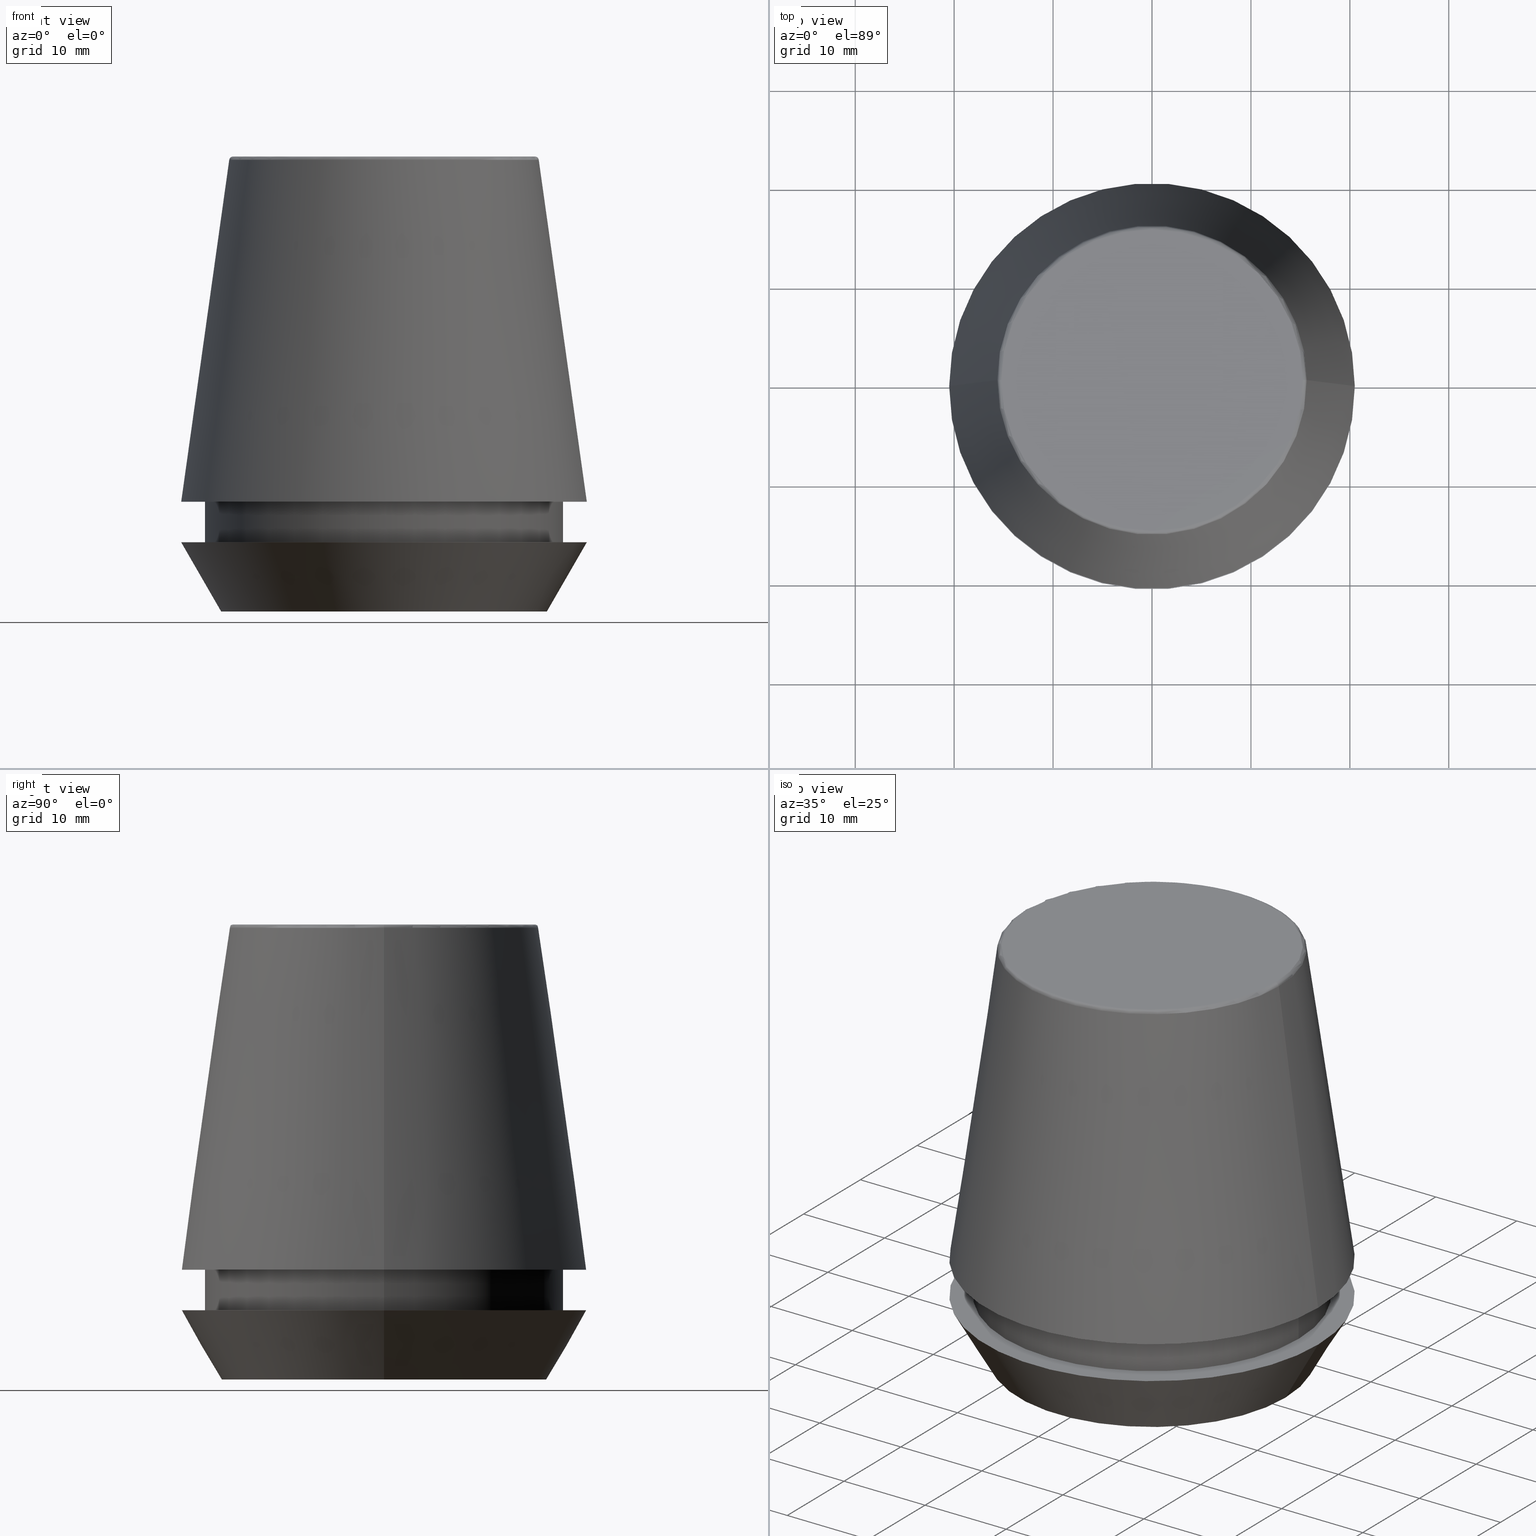
[diagram: canonical four-view strip — front | top / right | iso, engineering-drawing reading convention]
A machine part, canonical four-view strip (front | top / right | iso — engineering-drawing reading convention). The complete STEP part file that produces these views, byte-faithful:
ISO-10303-21;
HEADER;
FILE_DESCRIPTION (( 'STEP AP203' ),
    '1' );
FILE_NAME ('TAP COLLET ER 40G 12.5 X 10.0.STEP',
    '2019-04-10T04:03:06',
    ( '' ),
    ( '' ),
    'SwSTEP 2.0',
    'SolidWorks 2014',
    '' );
FILE_SCHEMA (( 'CONFIG_CONTROL_DESIGN' ));
ENDSEC;

DATA;
#1 = FACE_OUTER_BOUND ( 'NONE', #226, .T. ) ;
#2 = ADVANCED_FACE ( 'NONE', ( #323 ), #117, .T. ) ;
#3 = APPROVAL_DATE_TIME ( #240, #199 ) ;
#4 = EDGE_CURVE ( 'NONE', #152, #173, #128, .T. ) ;
#5 = DIRECTION ( 'NONE',  ( -0.0000000000000000000, -0.0000000000000000000, 1.000000000000000000 ) ) ;
#6 = CARTESIAN_POINT ( 'NONE',  ( 0.0000000000000000000, 0.0000000000000000000, 0.0000000000000000000 ) ) ;
#7 =( NAMED_UNIT ( * ) PLANE_ANGLE_UNIT ( ) SI_UNIT ( $, .RADIAN. ) );
#8 = AXIS2_PLACEMENT_3D ( 'NONE', #354, #185, #386 ) ;
#9 = VERTEX_POINT ( 'NONE', #54 ) ;
#10 = AXIS2_PLACEMENT_3D ( 'NONE', #347, #335, #136 ) ;
#11 = DIRECTION ( 'NONE',  ( 1.000000000000000000, 0.0000000000000000000, 0.0000000000000000000 ) ) ;
#12 = CIRCLE ( 'NONE', #361, 20.50032537154048700 ) ;
#13 = APPLICATION_CONTEXT ( 'configuration controlled 3d designs of mechanical parts and assemblies' ) ;
#14 = EDGE_CURVE ( 'NONE', #270, #253, #21, .T. ) ;
#15 = DIRECTION ( 'NONE',  ( 0.0000000000000000000, -0.0000000000000000000, 1.000000000000000000 ) ) ;
#16 = PERSON_AND_ORGANIZATION ( #278, #271 ) ;
#17 = UNCERTAINTY_MEASURE_WITH_UNIT (LENGTH_MEASURE( 1.000000000000000100E-005 ), #157, 'distance_accuracy_value', 'NONE');
#18 = DIRECTION ( 'NONE',  ( 1.000000000000000000, 0.0000000000000000000, 0.0000000000000000000 ) ) ;
#19 = DIRECTION ( 'NONE',  ( -0.0000000000000000000, -0.0000000000000000000, 1.000000000000000000 ) ) ;
#20 = CARTESIAN_POINT ( 'NONE',  ( 20.50000000000000000, 0.0000000000000000000, 7.000000000000006200 ) ) ;
#21 = CIRCLE ( 'NONE', #126, 18.10000000000000100 ) ;
#22 = DIRECTION ( 'NONE',  ( -1.000000000000000000, 0.0000000000000000000, 0.0000000000000000000 ) ) ;
#23 = CARTESIAN_POINT ( 'NONE',  ( 0.0000000000000000000, 0.0000000000000000000, 45.65566924038402900 ) ) ;
#24 = EDGE_CURVE ( 'NONE', #293, #193, #84, .T. ) ;
#25 = APPROVAL_ROLE ( '' ) ;
#26 = VERTEX_POINT ( 'NONE', #110 ) ;
#27 = AXIS2_PLACEMENT_3D ( 'NONE', #384, #36, #303 ) ;
#28 = SECURITY_CLASSIFICATION ( '', '', #141 ) ;
#29 = EDGE_CURVE ( 'NONE', #213, #173, #31, .T. ) ;
#30 = AXIS2_PLACEMENT_3D ( 'NONE', #74, #288, #97 ) ;
#31 = CIRCLE ( 'NONE', #59, 15.24773554530077600 ) ;
#32 = EDGE_CURVE ( 'NONE', #9, #213, #187, .T. ) ;
#33 = APPROVAL_DATE_TIME ( #178, #52 ) ;
#34 = AXIS2_PLACEMENT_3D ( 'NONE', #94, #310, #119 ) ;
#35 = EDGE_CURVE ( 'NONE', #26, #193, #61, .T. ) ;
#36 = DIRECTION ( 'NONE',  ( 1.224646799147353200E-016, 1.000000000000000000, 0.0000000000000000000 ) ) ;
#37 = PERSON_AND_ORGANIZATION ( #278, #271 ) ;
#38 = DIRECTION ( 'NONE',  ( 1.000000000000000000, 0.0000000000000000000, 0.0000000000000000000 ) ) ;
#39 = AXIS2_PLACEMENT_3D ( 'NONE', #377, #170, #18 ) ;
#40 = CARTESIAN_POINT ( 'NONE',  ( 16.45854811567268100, 0.0000000000000000000, 0.0000000000000000000 ) ) ;
#41 = EDGE_CURVE ( 'NONE', #152, #9, #264, .T. ) ;
#42 = DIRECTION ( 'NONE',  ( -0.0000000000000000000, -0.0000000000000000000, 1.000000000000000000 ) ) ;
#43 = CARTESIAN_POINT ( 'NONE',  ( -15.64384277279740400, 0.0000000000000000000, 45.65566924038402900 ) ) ;
#44 = APPROVAL_STATUS ( 'not_yet_approved' ) ;
#45 = CARTESIAN_POINT ( 'NONE',  ( 0.0000000000000000000, 0.0000000000000000000, 46.00000000000000000 ) ) ;
#46 = PERSON_AND_ORGANIZATION ( #278, #271 ) ;
#47 = ADVANCED_FACE ( 'NONE', ( #60 ), #348, .T. ) ;
#48 = AXIS2_PLACEMENT_3D ( 'NONE', #235, #42, #233 ) ;
#49 = CC_DESIGN_APPROVAL ( #52, ( #28 ) ) ;
#50 = PLANE ( 'NONE',  #350 ) ;
#51 = DATE_AND_TIME ( #81, #272 ) ;
#52 = APPROVAL ( #183, 'UNSPECIFIED' ) ;
#53 = CYLINDRICAL_SURFACE ( 'NONE', #382, 18.10000000000000500 ) ;
#54 = CARTESIAN_POINT ( 'NONE',  ( 15.64384277279740400, 2.213191991290356800E-015, 45.65566924038402900 ) ) ;
#55 = ADVANCED_FACE ( 'NONE', ( #362 ), #50, .F. ) ;
#56 = DIRECTION ( 'NONE',  ( 1.000000000000000000, 0.0000000000000000000, 0.0000000000000000000 ) ) ;
#57 = CARTESIAN_POINT ( 'NONE',  ( 0.0000000000000000000, 0.0000000000000000000, 11.09999999999999800 ) ) ;
#58 = PERSON_AND_ORGANIZATION ( #278, #271 ) ;
#59 = AXIS2_PLACEMENT_3D ( 'NONE', #304, #111, #338 ) ;
#60 = FACE_OUTER_BOUND ( 'NONE', #237, .T. ) ;
#61 = LINE ( 'NONE', #372, #280 ) ;
#62 = DIRECTION ( 'NONE',  ( -1.000000000000000000, 0.0000000000000000000, -0.0000000000000000000 ) ) ;
#63 = DIRECTION ( 'NONE',  ( -0.4999999999999941700, 6.123233995736694500E-017, 0.8660254037844420400 ) ) ;
#64 = TOROIDAL_SURFACE ( 'NONE', #30, 15.24773554530077600, 0.3999999999999991900 ) ;
#65 = DIRECTION ( 'NONE',  ( -0.0000000000000000000, -0.0000000000000000000, 1.000000000000000000 ) ) ;
#66 = PERSON_AND_ORGANIZATION_ROLE ( 'creator' ) ;
#67 = CARTESIAN_POINT ( 'NONE',  ( 20.50032537154048700, 2.510565784773633700E-015, 11.09999999999999800 ) ) ;
#68 = EDGE_LOOP ( 'NONE', ( #299, #282 ) ) ;
#69 = CALENDAR_DATE ( 2019, 10, 4 ) ;
#70 = DIRECTION ( 'NONE',  ( -0.0000000000000000000, -0.0000000000000000000, 1.000000000000000000 ) ) ;
#71 = PLANE ( 'NONE',  #254 ) ;
#72 = CONICAL_SURFACE ( 'NONE', #276, 16.45854811567268100, 0.5235987755982921500 ) ;
#73 = DIRECTION ( 'NONE',  ( -0.0000000000000000000, -0.0000000000000000000, 1.000000000000000000 ) ) ;
#74 = CARTESIAN_POINT ( 'NONE',  ( 0.0000000000000000000, 0.0000000000000000000, 45.60000000000000100 ) ) ;
#75 = CARTESIAN_POINT ( 'NONE',  ( 15.24773554530077600, 0.0000000000000000000, 45.60000000000000100 ) ) ;
#76 = ORIENTED_EDGE ( 'NONE', *, *, #29, .T. ) ;
#77 = CALENDAR_DATE ( 2019, 10, 4 ) ;
#78 = AXIS2_PLACEMENT_3D ( 'NONE', #369, #160, #198 ) ;
#79 = CIRCLE ( 'NONE', #39, 15.64384277279740400 ) ;
#80 = DATE_AND_TIME ( #77, #294 ) ;
#81 = CALENDAR_DATE ( 2019, 10, 4 ) ;
#82 = PRODUCT_RELATED_PRODUCT_CATEGORY ( 'detail', '', ( #239 ) ) ;
#83 = FACE_OUTER_BOUND ( 'NONE', #197, .T. ) ;
#84 = CIRCLE ( 'NONE', #48, 20.50000000000000000 ) ;
#85 = ADVANCED_FACE ( 'NONE', ( #326 ), #72, .T. ) ;
#86 = DIRECTION ( 'NONE',  ( 1.000000000000000000, 0.0000000000000000000, 0.0000000000000000000 ) ) ;
#87 = APPLICATION_CONTEXT ( 'configuration controlled 3d designs of mechanical parts and assemblies' ) ;
#88 = ORIENTED_EDGE ( 'NONE', *, *, #4, .T. ) ;
#89 = APPROVAL_STATUS ( 'not_yet_approved' ) ;
#90 = CARTESIAN_POINT ( 'NONE',  ( 20.50032537154048700, 2.510565784773633700E-015, 11.09999999999999800 ) ) ;
#91 = DIRECTION ( 'NONE',  ( -0.1391731009600587200, 0.0000000000000000000, -0.9902680687415712500 ) ) ;
#92 = VECTOR ( 'NONE', #91, 1000.000000000000000 ) ;
#93 = DIRECTION ( 'NONE',  ( -0.0000000000000000000, -0.0000000000000000000, 1.000000000000000000 ) ) ;
#94 = CARTESIAN_POINT ( 'NONE',  ( 0.0000000000000000000, 0.0000000000000000000, 0.0000000000000000000 ) ) ;
#95 = EDGE_CURVE ( 'NONE', #9, #152, #79, .T. ) ;
#96 = DIRECTION ( 'NONE',  ( 0.0000000000000000000, 0.0000000000000000000, -1.000000000000000000 ) ) ;
#97 = DIRECTION ( 'NONE',  ( 1.000000000000000000, 0.0000000000000000000, 0.0000000000000000000 ) ) ;
#98 = DIRECTION ( 'NONE',  ( 0.0000000000000000000, 0.0000000000000000000, -1.000000000000000000 ) ) ;
#99 = APPROVAL ( #44, 'UNSPECIFIED' ) ;
#100 = LOCAL_TIME ( 9, 33, 6.000000000000000000, #230 ) ;
#101 = CC_DESIGN_APPROVAL ( #99, ( #332 ) ) ;
#102 = LOCAL_TIME ( 9, 33, 6.000000000000000000, #250 ) ;
#103 = AXIS2_PLACEMENT_3D ( 'NONE', #308, #205, #122 ) ;
#104 = ORIENTED_EDGE ( 'NONE', *, *, #176, .F. ) ;
#105 = PLANE ( 'NONE',  #155 ) ;
#106 = ADVANCED_FACE ( 'NONE', ( #234 ), #364, .T. ) ;
#107 = CARTESIAN_POINT ( 'NONE',  ( 0.0000000000000000000, 0.0000000000000000000, 0.0000000000000000000 ) ) ;
#108 = CALENDAR_DATE ( 2019, 10, 4 ) ;
#109 = DIRECTION ( 'NONE',  ( -0.0000000000000000000, -0.0000000000000000000, 1.000000000000000000 ) ) ;
#110 = CARTESIAN_POINT ( 'NONE',  ( -16.45854811567268100, 2.263058382549599700E-015, 0.0000000000000000000 ) ) ;
#111 = DIRECTION ( 'NONE',  ( -0.0000000000000000000, -0.0000000000000000000, 1.000000000000000000 ) ) ;
#112 = DATE_AND_TIME ( #124, #100 ) ;
#113 = PLANE ( 'NONE',  #383 ) ;
#114 = PERSON_AND_ORGANIZATION_ROLE ( 'creator' ) ;
#115 = CIRCLE ( 'NONE', #164, 16.45854811567268100 ) ;
#116 = CARTESIAN_POINT ( 'NONE',  ( -20.50032537154048700, 0.0000000000000000000, 11.09999999999999800 ) ) ;
#117 = CONICAL_SURFACE ( 'NONE', #8, 20.50032537154048700, 0.1396263401595396200 ) ;
#118 = CC_DESIGN_PERSON_AND_ORGANIZATION_ASSIGNMENT ( #341, #345, ( #181 ) ) ;
#119 = DIRECTION ( 'NONE',  ( 1.000000000000000000, 0.0000000000000000000, 0.0000000000000000000 ) ) ;
#120 = CARTESIAN_POINT ( 'NONE',  ( 0.0000000000000000000, 0.0000000000000000000, 0.0000000000000000000 ) ) ;
#121 = DIRECTION ( 'NONE',  ( 1.000000000000000000, 0.0000000000000000000, 0.0000000000000000000 ) ) ;
#122 = DIRECTION ( 'NONE',  ( 1.000000000000000000, 0.0000000000000000000, 0.0000000000000000000 ) ) ;
#123 = APPROVAL_PERSON_ORGANIZATION ( #37, #199, #307 ) ;
#124 = CALENDAR_DATE ( 2019, 10, 4 ) ;
#125 = VERTEX_POINT ( 'NONE', #143 ) ;
#126 = AXIS2_PLACEMENT_3D ( 'NONE', #371, #163, #11 ) ;
#127 = SHAPE_DEFINITION_REPRESENTATION ( #367, #375 ) ;
#128 = CIRCLE ( 'NONE', #27, 0.3999999999999975800 ) ;
#129 = EDGE_CURVE ( 'NONE', #9, #215, #340, .T. ) ;
#130 = CC_DESIGN_DATE_AND_TIME_ASSIGNMENT ( #112, #167, ( #28 ) ) ;
#131 = DIRECTION ( 'NONE',  ( 1.000000000000000000, 0.0000000000000000000, 0.0000000000000000000 ) ) ;
#132 = LOCAL_TIME ( 9, 33, 6.000000000000000000, #186 ) ;
#133 = DIRECTION ( 'NONE',  ( -0.0000000000000000000, -0.0000000000000000000, 1.000000000000000000 ) ) ;
#134 = AXIS2_PLACEMENT_3D ( 'NONE', #23, #138, #179 ) ;
#135 = CARTESIAN_POINT ( 'NONE',  ( 0.0000000000000000000, 0.0000000000000000000, 11.09999999999999800 ) ) ;
#136 = DIRECTION ( 'NONE',  ( 1.000000000000000000, 0.0000000000000000000, 0.0000000000000000000 ) ) ;
#137 = EDGE_CURVE ( 'NONE', #204, #293, #156, .T. ) ;
#138 = DIRECTION ( 'NONE',  ( -0.0000000000000000000, -0.0000000000000000000, 1.000000000000000000 ) ) ;
#139 = CARTESIAN_POINT ( 'NONE',  ( 0.0000000000000000000, 0.0000000000000000000, 7.000000000000006200 ) ) ;
#140 = APPLICATION_PROTOCOL_DEFINITION ( 'international standard', 'config_control_design', 1994, #87 ) ;
#141 = SECURITY_CLASSIFICATION_LEVEL ( 'unclassified' ) ;
#142 = CC_DESIGN_PERSON_AND_ORGANIZATION_ASSIGNMENT ( #46, #114, ( #181 ) ) ;
#143 = CARTESIAN_POINT ( 'NONE',  ( -20.50032537154048700, 0.0000000000000000000, 11.09999999999999800 ) ) ;
#144 = EDGE_LOOP ( 'NONE', ( #297, #171 ) ) ;
#145 = CARTESIAN_POINT ( 'NONE',  ( 0.0000000000000000000, 20.50032537154048700, 11.09999999999999800 ) ) ;
#146 = DIRECTION ( 'NONE',  ( 0.0000000000000000000, 0.0000000000000000000, -1.000000000000000000 ) ) ;
#147 = EDGE_CURVE ( 'NONE', #193, #293, #380, .T. ) ;
#148 = AXIS2_PLACEMENT_3D ( 'NONE', #284, #93, #121 ) ;
#149 = EDGE_CURVE ( 'NONE', #215, #125, #261, .T. ) ;
#150 = ADVANCED_FACE ( 'NONE', ( #356, #358 ), #113, .F. ) ;
#151 = ORIENTED_EDGE ( 'NONE', *, *, #365, .T. ) ;
#152 = VERTEX_POINT ( 'NONE', #43 ) ;
#153 = CIRCLE ( 'NONE', #259, 18.10000000000000500 ) ;
#154 = CARTESIAN_POINT ( 'NONE',  ( 0.0000000000000000000, 0.0000000000000000000, 46.00000000000000000 ) ) ;
#155 = AXIS2_PLACEMENT_3D ( 'NONE', #107, #329, #131 ) ;
#156 = LINE ( 'NONE', #182, #379 ) ;
#157 =( LENGTH_UNIT ( ) NAMED_UNIT ( * ) SI_UNIT ( .MILLI., .METRE. ) );
#158 = FACE_BOUND ( 'NONE', #144, .T. ) ;
#159 = ORIENTED_EDGE ( 'NONE', *, *, #95, .T. ) ;
#160 = DIRECTION ( 'NONE',  ( -0.0000000000000000000, -0.0000000000000000000, 1.000000000000000000 ) ) ;
#161 = AXIS2_PLACEMENT_3D ( 'NONE', #320, #146, #22 ) ;
#162 = AXIS2_PLACEMENT_3D ( 'NONE', #241, #65, #212 ) ;
#163 = DIRECTION ( 'NONE',  ( -0.0000000000000000000, -0.0000000000000000000, 1.000000000000000000 ) ) ;
#164 = AXIS2_PLACEMENT_3D ( 'NONE', #330, #133, #366 ) ;
#165 = DIRECTION ( 'NONE',  ( 1.000000000000000000, 0.0000000000000000000, 0.0000000000000000000 ) ) ;
#166 = PERSON_AND_ORGANIZATION_ROLE ( 'design_owner' ) ;
#167 = DATE_TIME_ROLE ( 'classification_date' ) ;
#168 =( GEOMETRIC_REPRESENTATION_CONTEXT ( 3 ) GLOBAL_UNCERTAINTY_ASSIGNED_CONTEXT ( ( #17 ) ) GLOBAL_UNIT_ASSIGNED_CONTEXT ( ( #157, #7, #196 ) ) REPRESENTATION_CONTEXT ( 'NONE', 'WORKASPACE' ) );
#169 = ORIENTED_EDGE ( 'NONE', *, *, #147, .F. ) ;
#170 = DIRECTION ( 'NONE',  ( -0.0000000000000000000, -0.0000000000000000000, 1.000000000000000000 ) ) ;
#171 = ORIENTED_EDGE ( 'NONE', *, *, #14, .F. ) ;
#172 = CARTESIAN_POINT ( 'NONE',  ( 0.0000000000000000000, 0.0000000000000000000, 11.09999999999999800 ) ) ;
#173 = VERTEX_POINT ( 'NONE', #244 ) ;
#174 = DESIGN_CONTEXT ( 'detailed design', #13, 'design' ) ;
#175 = ORIENTED_EDGE ( 'NONE', *, *, #311, .T. ) ;
#176 = EDGE_CURVE ( 'NONE', #173, #213, #209, .T. ) ;
#177 = CIRCLE ( 'NONE', #232, 18.10000000000000500 ) ;
#178 = DATE_AND_TIME ( #69, #132 ) ;
#179 = DIRECTION ( 'NONE',  ( 1.000000000000000000, 0.0000000000000000000, 0.0000000000000000000 ) ) ;
#180 = CARTESIAN_POINT ( 'NONE',  ( 18.10000000000000100, 0.0000000000000000000, 6.999999999999999100 ) ) ;
#181 = PRODUCT_DEFINITION_FORMATION_WITH_SPECIFIED_SOURCE ( 'ANY', '', #239, .NOT_KNOWN. ) ;
#182 = CARTESIAN_POINT ( 'NONE',  ( 16.45854811567268100, 0.0000000000000000000, 0.0000000000000000000 ) ) ;
#183 = APPROVAL_STATUS ( 'not_yet_approved' ) ;
#184 = ORIENTED_EDGE ( 'NONE', *, *, #311, .F. ) ;
#185 = DIRECTION ( 'NONE',  ( 0.0000000000000000000, 0.0000000000000000000, -1.000000000000000000 ) ) ;
#186 = COORDINATED_UNIVERSAL_TIME_OFFSET ( 5, 30, .AHEAD. ) ;
#187 = CIRCLE ( 'NONE', #344, 0.3999999999999975800 ) ;
#188 = EDGE_CURVE ( 'NONE', #152, #125, #249, .T. ) ;
#189 = ORIENTED_EDGE ( 'NONE', *, *, #385, .F. ) ;
#190 = ORIENTED_EDGE ( 'NONE', *, *, #305, .F. ) ;
#191 = EDGE_LOOP ( 'NONE', ( #189, #312 ) ) ;
#192 = ADVANCED_FACE ( 'NONE', ( #343 ), #238, .T. ) ;
#193 = VERTEX_POINT ( 'NONE', #231 ) ;
#194 = ORIENTED_EDGE ( 'NONE', *, *, #188, .T. ) ;
#195 = ORIENTED_EDGE ( 'NONE', *, *, #137, .T. ) ;
#196 =( NAMED_UNIT ( * ) SI_UNIT ( $, .STERADIAN. ) SOLID_ANGLE_UNIT ( ) );
#197 = EDGE_LOOP ( 'NONE', ( #214, #256, #175, #190 ) ) ;
#198 = DIRECTION ( 'NONE',  ( 1.000000000000000000, 0.0000000000000000000, 0.0000000000000000000 ) ) ;
#199 = APPROVAL ( #89, 'UNSPECIFIED' ) ;
#200 = ORIENTED_EDGE ( 'NONE', *, *, #149, .F. ) ;
#201 = APPLICATION_PROTOCOL_DEFINITION ( 'international standard', 'config_control_design', 1994, #13 ) ;
#202 = ORIENTED_EDGE ( 'NONE', *, *, #149, .T. ) ;
#203 = DIRECTION ( 'NONE',  ( 1.000000000000000000, 0.0000000000000000000, 0.0000000000000000000 ) ) ;
#204 = VERTEX_POINT ( 'NONE', #40 ) ;
#205 = DIRECTION ( 'NONE',  ( -0.0000000000000000000, -0.0000000000000000000, 1.000000000000000000 ) ) ;
#206 = APPROVAL_PERSON_ORGANIZATION ( #327, #99, #243 ) ;
#207 = DIRECTION ( 'NONE',  ( 1.000000000000000000, 0.0000000000000000000, 0.0000000000000000000 ) ) ;
#208 = CARTESIAN_POINT ( 'NONE',  ( 18.10000000000000500, 0.0000000000000000000, 11.09999999999999800 ) ) ;
#209 = CIRCLE ( 'NONE', #10, 15.24773554530077600 ) ;
#210 = ORIENTED_EDGE ( 'NONE', *, *, #29, .F. ) ;
#211 = ORIENTED_EDGE ( 'NONE', *, *, #220, .T. ) ;
#212 = DIRECTION ( 'NONE',  ( 1.000000000000000000, 0.0000000000000000000, 0.0000000000000000000 ) ) ;
#213 = VERTEX_POINT ( 'NONE', #339 ) ;
#214 = ORIENTED_EDGE ( 'NONE', *, *, #355, .F. ) ;
#215 = VERTEX_POINT ( 'NONE', #67 ) ;
#216 = ORIENTED_EDGE ( 'NONE', *, *, #35, .F. ) ;
#217 = ORIENTED_EDGE ( 'NONE', *, *, #355, .T. ) ;
#218 = CC_DESIGN_SECURITY_CLASSIFICATION ( #28, ( #181 ) ) ;
#219 = CIRCLE ( 'NONE', #34, 16.45854811567268100 ) ;
#220 = EDGE_CURVE ( 'NONE', #26, #204, #219, .T. ) ;
#221 = DIRECTION ( 'NONE',  ( -0.0000000000000000000, -0.0000000000000000000, 1.000000000000000000 ) ) ;
#222 = ADVANCED_FACE ( 'NONE', ( #158, #359 ), #71, .F. ) ;
#223 = COORDINATED_UNIVERSAL_TIME_OFFSET ( 5, 30, .AHEAD. ) ;
#224 = DIRECTION ( 'NONE',  ( 0.0000000000000000000, 0.0000000000000000000, 1.000000000000000000 ) ) ;
#225 = EDGE_LOOP ( 'NONE', ( #357, #217, #300, #184 ) ) ;
#226 = EDGE_LOOP ( 'NONE', ( #269, #277, #236, #104 ) ) ;
#227 = CARTESIAN_POINT ( 'NONE',  ( 18.10000000000000500, 0.0000000000000000000, 46.00000000000000000 ) ) ;
#228 = CYLINDRICAL_SURFACE ( 'NONE', #263, 18.10000000000000500 ) ;
#229 = LINE ( 'NONE', #227, #257 ) ;
#230 = COORDINATED_UNIVERSAL_TIME_OFFSET ( 5, 30, .AHEAD. ) ;
#231 = CARTESIAN_POINT ( 'NONE',  ( -20.50000000000000000, 2.510525938252074100E-015, 7.000000000000006200 ) ) ;
#232 = AXIS2_PLACEMENT_3D ( 'NONE', #172, #19, #207 ) ;
#233 = DIRECTION ( 'NONE',  ( 1.000000000000000000, 0.0000000000000000000, 0.0000000000000000000 ) ) ;
#234 = FACE_OUTER_BOUND ( 'NONE', #328, .T. ) ;
#235 = CARTESIAN_POINT ( 'NONE',  ( 0.0000000000000000000, 0.0000000000000000000, 7.000000000000006200 ) ) ;
#236 = ORIENTED_EDGE ( 'NONE', *, *, #32, .T. ) ;
#237 = EDGE_LOOP ( 'NONE', ( #316, #242, #194, #151 ) ) ;
#238 = CONICAL_SURFACE ( 'NONE', #78, 16.45854811567268100, 0.5235987755982921500 ) ;
#239 = PRODUCT ( 'TAP COLLET ER 40G 12.5 X 10.0', 'TAP COLLET ER 40G 12.5 X 10.0', '', ( #374 ) ) ;
#240 = DATE_AND_TIME ( #108, #102 ) ;
#241 = CARTESIAN_POINT ( 'NONE',  ( 0.0000000000000000000, 0.0000000000000000000, 11.09999999999999800 ) ) ;
#242 = ORIENTED_EDGE ( 'NONE', *, *, #41, .F. ) ;
#243 = APPROVAL_ROLE ( '' ) ;
#244 = CARTESIAN_POINT ( 'NONE',  ( -15.24773554530077600, 1.891563625393435400E-015, 46.00000000000000000 ) ) ;
#245 = ORIENTED_EDGE ( 'NONE', *, *, #24, .F. ) ;
#246 = FACE_OUTER_BOUND ( 'NONE', #191, .T. ) ;
#247 = AXIS2_PLACEMENT_3D ( 'NONE', #139, #373, #165 ) ;
#248 = ORIENTED_EDGE ( 'NONE', *, *, #24, .T. ) ;
#249 = LINE ( 'NONE', #116, #92 ) ;
#250 = COORDINATED_UNIVERSAL_TIME_OFFSET ( 5, 30, .AHEAD. ) ;
#251 = DIRECTION ( 'NONE',  ( 1.000000000000000000, 0.0000000000000000000, 0.0000000000000000000 ) ) ;
#252 = AXIS2_PLACEMENT_3D ( 'NONE', #6, #224, #342 ) ;
#253 = VERTEX_POINT ( 'NONE', #180 ) ;
#254 = AXIS2_PLACEMENT_3D ( 'NONE', #285, #349, #62 ) ;
#255 = CC_DESIGN_PERSON_AND_ORGANIZATION_ASSIGNMENT ( #258, #376, ( #28 ) ) ;
#256 = ORIENTED_EDGE ( 'NONE', *, *, #14, .T. ) ;
#257 = VECTOR ( 'NONE', #5, 1000.000000000000000 ) ;
#258 = PERSON_AND_ORGANIZATION ( #278, #271 ) ;
#259 = AXIS2_PLACEMENT_3D ( 'NONE', #135, #368, #378 ) ;
#260 = ORIENTED_EDGE ( 'NONE', *, *, #137, .F. ) ;
#261 = CIRCLE ( 'NONE', #162, 20.50032537154048700 ) ;
#262 = VERTEX_POINT ( 'NONE', #208 ) ;
#263 = AXIS2_PLACEMENT_3D ( 'NONE', #45, #70, #38 ) ;
#264 = CIRCLE ( 'NONE', #134, 15.64384277279740400 ) ;
#265 = ADVANCED_FACE ( 'NONE', ( #1 ), #64, .T. ) ;
#266 = EDGE_LOOP ( 'NONE', ( #331, #281, #202, #351 ) ) ;
#267 = ORIENTED_EDGE ( 'NONE', *, *, #35, .T. ) ;
#268 = DIRECTION ( 'NONE',  ( -0.0000000000000000000, -0.0000000000000000000, 1.000000000000000000 ) ) ;
#269 = ORIENTED_EDGE ( 'NONE', *, *, #4, .F. ) ;
#270 = VERTEX_POINT ( 'NONE', #275 ) ;
#271 = ORGANIZATION ( 'UNSPECIFIED', 'UNSPECIFIED', '' ) ;
#272 = LOCAL_TIME ( 9, 33, 6.000000000000000000, #318 ) ;
#273 = CARTESIAN_POINT ( 'NONE',  ( -18.10000000000000500, 2.216610706456710000E-015, 11.09999999999999800 ) ) ;
#274 = EDGE_CURVE ( 'NONE', #262, #309, #177, .T. ) ;
#275 = CARTESIAN_POINT ( 'NONE',  ( -18.10000000000000100, 2.216610706456709600E-015, 6.999999999999999100 ) ) ;
#276 = AXIS2_PLACEMENT_3D ( 'NONE', #120, #73, #251 ) ;
#277 = ORIENTED_EDGE ( 'NONE', *, *, #41, .T. ) ;
#278 = PERSON ( 'UNSPECIFIED', 'UNSPECIFIED', 'UNSPECIFIED', ('UNSPECIFIED'), ('UNSPECIFIED'), ('UNSPECIFIED') ) ;
#279 = DATE_TIME_ROLE ( 'creation_date' ) ;
#280 = VECTOR ( 'NONE', #63, 1000.000000000000000 ) ;
#281 = ORIENTED_EDGE ( 'NONE', *, *, #129, .T. ) ;
#282 = ORIENTED_EDGE ( 'NONE', *, *, #305, .T. ) ;
#283 = LINE ( 'NONE', #334, #360 ) ;
#284 = CARTESIAN_POINT ( 'NONE',  ( 0.0000000000000000000, 0.0000000000000000000, 6.999999999999999100 ) ) ;
#285 = CARTESIAN_POINT ( 'NONE',  ( 0.0000000000000000000, 20.50000000000000000, 7.000000000000002700 ) ) ;
#286 = CARTESIAN_POINT ( 'NONE',  ( 0.0000000000000000000, 15.24773554530077600, 46.00000000000000000 ) ) ;
#287 = EDGE_LOOP ( 'NONE', ( #325, #200 ) ) ;
#288 = DIRECTION ( 'NONE',  ( -0.0000000000000000000, -0.0000000000000000000, 1.000000000000000000 ) ) ;
#289 = DIRECTION ( 'NONE',  ( 0.0000000000000000000, -1.000000000000000000, 0.0000000000000000000 ) ) ;
#290 = EDGE_CURVE ( 'NONE', #253, #270, #337, .T. ) ;
#291 = ORIENTED_EDGE ( 'NONE', *, *, #147, .T. ) ;
#292 = EDGE_LOOP ( 'NONE', ( #76, #353 ) ) ;
#293 = VERTEX_POINT ( 'NONE', #20 ) ;
#294 = LOCAL_TIME ( 9, 33, 6.000000000000000000, #223 ) ;
#295 = CC_DESIGN_PERSON_AND_ORGANIZATION_ASSIGNMENT ( #16, #66, ( #332 ) ) ;
#296 = ADVANCED_FACE ( 'NONE', ( #83 ), #228, .T. ) ;
#297 = ORIENTED_EDGE ( 'NONE', *, *, #290, .F. ) ;
#298 = CC_DESIGN_APPROVAL ( #199, ( #181 ) ) ;
#299 = ORIENTED_EDGE ( 'NONE', *, *, #274, .T. ) ;
#300 = ORIENTED_EDGE ( 'NONE', *, *, #274, .F. ) ;
#301 = EDGE_LOOP ( 'NONE', ( #216, #211, #195, #169 ) ) ;
#302 = ORIENTED_EDGE ( 'NONE', *, *, #32, .F. ) ;
#303 = DIRECTION ( 'NONE',  ( -1.000000000000000000, 1.224646799147353900E-016, 0.0000000000000000000 ) ) ;
#304 = CARTESIAN_POINT ( 'NONE',  ( 0.0000000000000000000, 0.0000000000000000000, 46.00000000000000000 ) ) ;
#305 = EDGE_CURVE ( 'NONE', #309, #262, #153, .T. ) ;
#306 = CC_DESIGN_PERSON_AND_ORGANIZATION_ASSIGNMENT ( #58, #166, ( #239 ) ) ;
#307 = APPROVAL_ROLE ( '' ) ;
#308 = CARTESIAN_POINT ( 'NONE',  ( 0.0000000000000000000, 0.0000000000000000000, 45.60000000000000100 ) ) ;
#309 = VERTEX_POINT ( 'NONE', #273 ) ;
#310 = DIRECTION ( 'NONE',  ( -0.0000000000000000000, -0.0000000000000000000, 1.000000000000000000 ) ) ;
#311 = EDGE_CURVE ( 'NONE', #253, #262, #229, .T. ) ;
#312 = ORIENTED_EDGE ( 'NONE', *, *, #220, .F. ) ;
#313 = CLOSED_SHELL ( 'NONE', ( #106, #2, #321, #85, #363, #192, #222, #296, #150, #47, #265, #55 ) ) ;
#314 = ORIENTED_EDGE ( 'NONE', *, *, #385, .T. ) ;
#315 = EDGE_LOOP ( 'NONE', ( #314, #267, #245, #260 ) ) ;
#316 = ORIENTED_EDGE ( 'NONE', *, *, #129, .F. ) ;
#317 = DIRECTION ( 'NONE',  ( -1.000000000000000000, 0.0000000000000000000, -0.0000000000000000000 ) ) ;
#318 = COORDINATED_UNIVERSAL_TIME_OFFSET ( 5, 30, .AHEAD. ) ;
#319 = DIRECTION ( 'NONE',  ( 0.4999999999999941700, 0.0000000000000000000, 0.8660254037844420400 ) ) ;
#320 = CARTESIAN_POINT ( 'NONE',  ( 0.0000000000000000000, 0.0000000000000000000, 11.09999999999999800 ) ) ;
#321 = ADVANCED_FACE ( 'NONE', ( #333 ), #53, .T. ) ;
#322 = EDGE_LOOP ( 'NONE', ( #248, #291 ) ) ;
#323 = FACE_OUTER_BOUND ( 'NONE', #266, .T. ) ;
#324 = APPROVAL_DATE_TIME ( #51, #99 ) ;
#325 = ORIENTED_EDGE ( 'NONE', *, *, #365, .F. ) ;
#326 = FACE_OUTER_BOUND ( 'NONE', #315, .T. ) ;
#327 = PERSON_AND_ORGANIZATION ( #278, #271 ) ;
#328 = EDGE_LOOP ( 'NONE', ( #159, #88, #210, #302 ) ) ;
#329 = DIRECTION ( 'NONE',  ( 0.0000000000000000000, -0.0000000000000000000, 1.000000000000000000 ) ) ;
#330 = CARTESIAN_POINT ( 'NONE',  ( 0.0000000000000000000, 0.0000000000000000000, 0.0000000000000000000 ) ) ;
#331 = ORIENTED_EDGE ( 'NONE', *, *, #95, .F. ) ;
#332 = PRODUCT_DEFINITION ( 'UNKNOWN', '', #181, #174 ) ;
#333 = FACE_OUTER_BOUND ( 'NONE', #225, .T. ) ;
#334 = CARTESIAN_POINT ( 'NONE',  ( -18.10000000000000500, 2.216610706456710000E-015, 46.00000000000000000 ) ) ;
#335 = DIRECTION ( 'NONE',  ( -0.0000000000000000000, -0.0000000000000000000, 1.000000000000000000 ) ) ;
#336 = PERSON_AND_ORGANIZATION ( #278, #271 ) ;
#337 = CIRCLE ( 'NONE', #148, 18.10000000000000100 ) ;
#338 = DIRECTION ( 'NONE',  ( 1.000000000000000000, 0.0000000000000000000, 0.0000000000000000000 ) ) ;
#339 = CARTESIAN_POINT ( 'NONE',  ( 15.24773554530077600, 0.0000000000000000000, 46.00000000000000000 ) ) ;
#340 = LINE ( 'NONE', #90, #370 ) ;
#341 = PERSON_AND_ORGANIZATION ( #278, #271 ) ;
#342 = DIRECTION ( 'NONE',  ( 1.000000000000000000, 0.0000000000000000000, 0.0000000000000000000 ) ) ;
#343 = FACE_OUTER_BOUND ( 'NONE', #301, .T. ) ;
#344 = AXIS2_PLACEMENT_3D ( 'NONE', #75, #289, #98 ) ;
#345 = PERSON_AND_ORGANIZATION_ROLE ( 'design_supplier' ) ;
#346 = MANIFOLD_SOLID_BREP ( 'Revolve1', #313 ) ;
#347 = CARTESIAN_POINT ( 'NONE',  ( 0.0000000000000000000, 0.0000000000000000000, 46.00000000000000000 ) ) ;
#348 = CONICAL_SURFACE ( 'NONE', #161, 20.50032537154048700, 0.1396263401595396200 ) ;
#349 = DIRECTION ( 'NONE',  ( 0.0000000000000000000, 0.0000000000000000000, -1.000000000000000000 ) ) ;
#350 = AXIS2_PLACEMENT_3D ( 'NONE', #286, #96, #317 ) ;
#351 = ORIENTED_EDGE ( 'NONE', *, *, #188, .F. ) ;
#352 = CC_DESIGN_DATE_AND_TIME_ASSIGNMENT ( #80, #279, ( #332 ) ) ;
#353 = ORIENTED_EDGE ( 'NONE', *, *, #176, .T. ) ;
#354 = CARTESIAN_POINT ( 'NONE',  ( 0.0000000000000000000, 0.0000000000000000000, 11.09999999999999800 ) ) ;
#355 = EDGE_CURVE ( 'NONE', #270, #309, #283, .T. ) ;
#356 = FACE_OUTER_BOUND ( 'NONE', #287, .T. ) ;
#357 = ORIENTED_EDGE ( 'NONE', *, *, #290, .T. ) ;
#358 = FACE_BOUND ( 'NONE', #68, .T. ) ;
#359 = FACE_OUTER_BOUND ( 'NONE', #322, .T. ) ;
#360 = VECTOR ( 'NONE', #109, 1000.000000000000000 ) ;
#361 = AXIS2_PLACEMENT_3D ( 'NONE', #57, #268, #86 ) ;
#362 = FACE_OUTER_BOUND ( 'NONE', #292, .T. ) ;
#363 = ADVANCED_FACE ( 'NONE', ( #246 ), #105, .F. ) ;
#364 = TOROIDAL_SURFACE ( 'NONE', #103, 15.24773554530077600, 0.3999999999999991900 ) ;
#365 = EDGE_CURVE ( 'NONE', #125, #215, #12, .T. ) ;
#366 = DIRECTION ( 'NONE',  ( 1.000000000000000000, 0.0000000000000000000, 0.0000000000000000000 ) ) ;
#367 = PRODUCT_DEFINITION_SHAPE ( 'NONE', 'NONE',  #332 ) ;
#368 = DIRECTION ( 'NONE',  ( -0.0000000000000000000, -0.0000000000000000000, 1.000000000000000000 ) ) ;
#369 = CARTESIAN_POINT ( 'NONE',  ( 0.0000000000000000000, 0.0000000000000000000, 0.0000000000000000000 ) ) ;
#370 = VECTOR ( 'NONE', #381, 1000.000000000000000 ) ;
#371 = CARTESIAN_POINT ( 'NONE',  ( 0.0000000000000000000, 0.0000000000000000000, 6.999999999999999100 ) ) ;
#372 = CARTESIAN_POINT ( 'NONE',  ( -16.45854811567268100, 2.015590826847124800E-015, 0.0000000000000000000 ) ) ;
#373 = DIRECTION ( 'NONE',  ( -0.0000000000000000000, -0.0000000000000000000, 1.000000000000000000 ) ) ;
#374 = MECHANICAL_CONTEXT ( 'NONE', #87, 'mechanical' ) ;
#375 = ADVANCED_BREP_SHAPE_REPRESENTATION ( 'TAP COLLET ER 40G 12.5 X 10.0', ( #346, #252 ), #168 ) ;
#376 = PERSON_AND_ORGANIZATION_ROLE ( 'classification_officer' ) ;
#377 = CARTESIAN_POINT ( 'NONE',  ( 0.0000000000000000000, 0.0000000000000000000, 45.65566924038402900 ) ) ;
#378 = DIRECTION ( 'NONE',  ( 1.000000000000000000, 0.0000000000000000000, 0.0000000000000000000 ) ) ;
#379 = VECTOR ( 'NONE', #319, 1000.000000000000000 ) ;
#380 = CIRCLE ( 'NONE', #247, 20.50000000000000000 ) ;
#381 = DIRECTION ( 'NONE',  ( 0.1391731009600587200, 1.704378926181473400E-017, -0.9902680687415712500 ) ) ;
#382 = AXIS2_PLACEMENT_3D ( 'NONE', #154, #221, #56 ) ;
#383 = AXIS2_PLACEMENT_3D ( 'NONE', #145, #15, #203 ) ;
#384 = CARTESIAN_POINT ( 'NONE',  ( -15.24773554530077600, 1.867309052979791600E-015, 45.60000000000000100 ) ) ;
#385 = EDGE_CURVE ( 'NONE', #204, #26, #115, .T. ) ;
#386 = DIRECTION ( 'NONE',  ( -1.000000000000000000, 0.0000000000000000000, 0.0000000000000000000 ) ) ;
#387 = APPROVAL_PERSON_ORGANIZATION ( #336, #52, #25 ) ;
ENDSEC;
END-ISO-10303-21;
